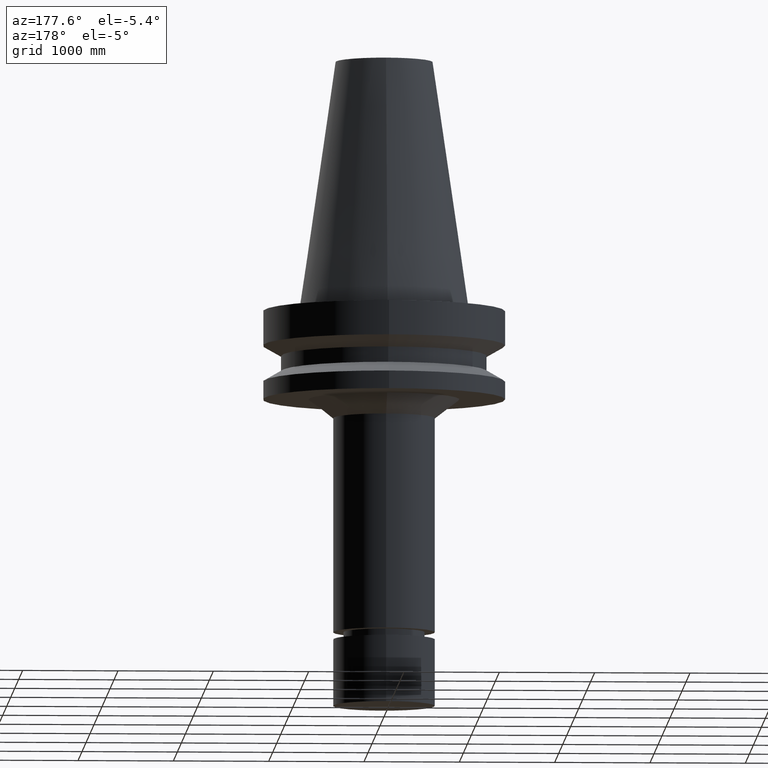
[diagram: clean part render]
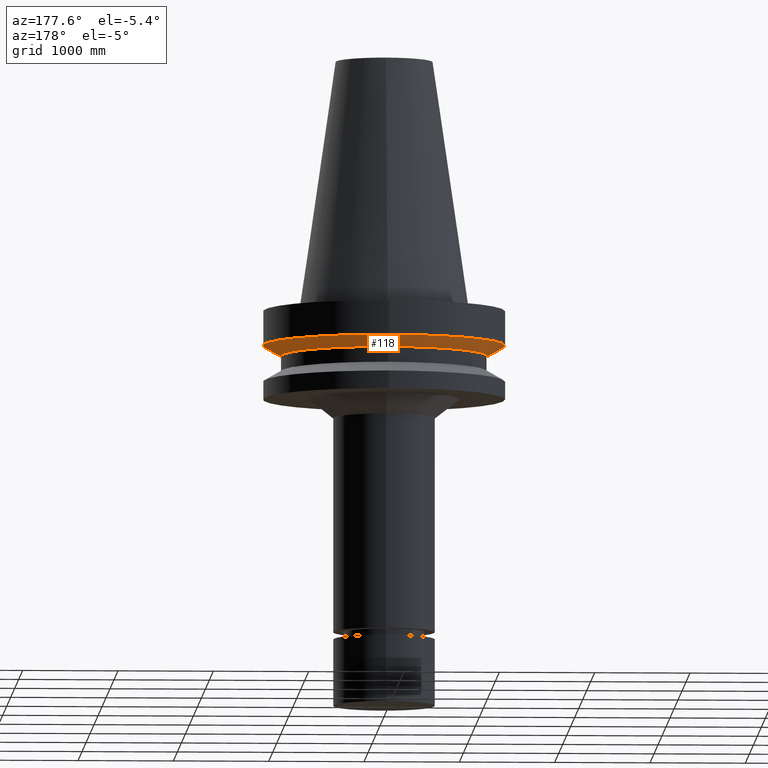
[diagram: same view with one face highlighted and labeled with its STEP entity id]
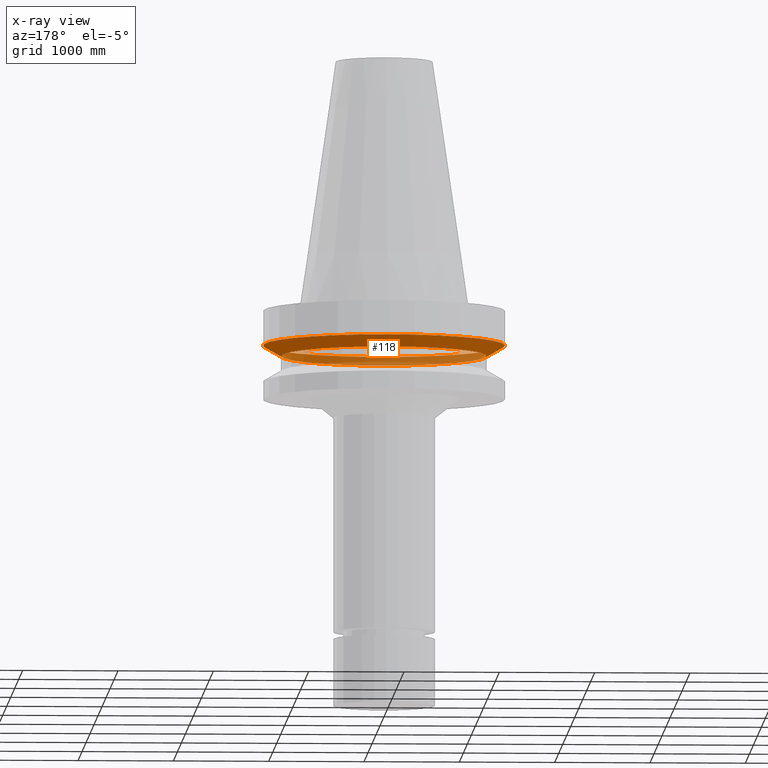
[diagram: x-ray of the same camera — body ghosted, the highlighted face saturated]
A machine part, auxiliary view. The second image highlights one B-rep face of the part: STEP entity #118.
The next image is the same camera in x-ray: the body ghosted, the highlighted face saturated — about 35% of this face is hidden behind the body in this view.
In plain terms, the highlighted conical surface has half-angle 60 deg.
Its self-contained STEP definition (entity closure, byte-faithful):
#80=EDGE_CURVE('Unnamed[1]',#209,#209,#210,.T.);
#118=ADVANCED_FACE('Unnamed[1]',(#265,#266),#267,.T.);
#180=EDGE_CURVE('Unnamed[1]',#362,#362,#363,.T.);
#209=VERTEX_POINT('',#387);
#210=CIRCLE('',#388,50.0);
#265=FACE_BOUND('',#455,.T.);
#266=FACE_BOUND('',#456,.T.);
#267=CONICAL_SURFACE('',#457,46.25,1.04719755108882);
#362=VERTEX_POINT('',#577);
#363=CIRCLE('',#578,42.5);
#387=CARTESIAN_POINT('',(9.61347737330674E-016,50.0,-15.7));
#388=AXIS2_PLACEMENT_3D('',#589,#590,#591);
#455=EDGE_LOOP('',(#648));
#456=EDGE_LOOP('',(#649));
#457=AXIS2_PLACEMENT_3D('',#650,#651,#652);
#577=CARTESIAN_POINT('',(1.2264915470779E-015,42.5,-20.03012702));
#578=AXIS2_PLACEMENT_3D('',#758,#759,#760);
#589=CARTESIAN_POINT('',(9.61347737330675E-016,1.62369811889471E-014,-15.7));
#590=DIRECTION('',(-6.12323399573677E-017,-2.72265846766671E-017,1.0));
#591=DIRECTION('',(-6.49430021956856E-033,1.0,2.72265846766671E-017));
#648=ORIENTED_EDGE('',*,*,#80,.F.);
#649=ORIENTED_EDGE('',*,*,#180,.T.);
#650=CARTESIAN_POINT('',(1.09391964220429E-015,1.62959284739324E-014,-17.86506351));
#651=DIRECTION('',(-6.12323399573677E-017,-2.72265846766479E-017,1.0));
#652=DIRECTION('',(-6.4943002195643E-033,1.0,2.72265846766479E-017));
#758=CARTESIAN_POINT('',(1.2264915470779E-015,1.63548757589177E-014,-20.03012702));
#759=DIRECTION('',(-6.12323399573677E-017,-2.72265846766253E-017,1.0));
#760=DIRECTION('',(-6.4943002195635E-033,1.0,2.72265846766253E-017));